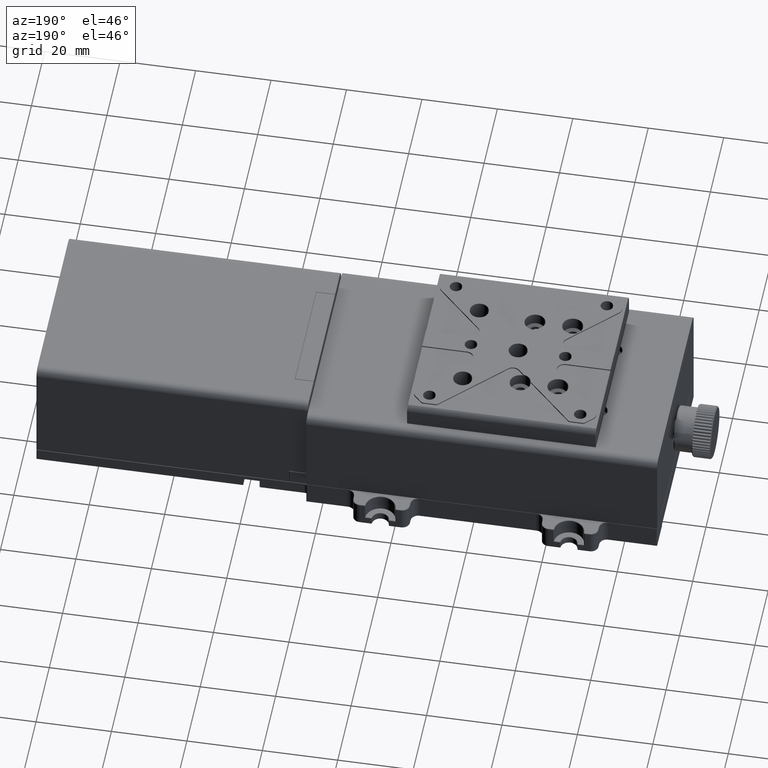
[diagram: clean part render]
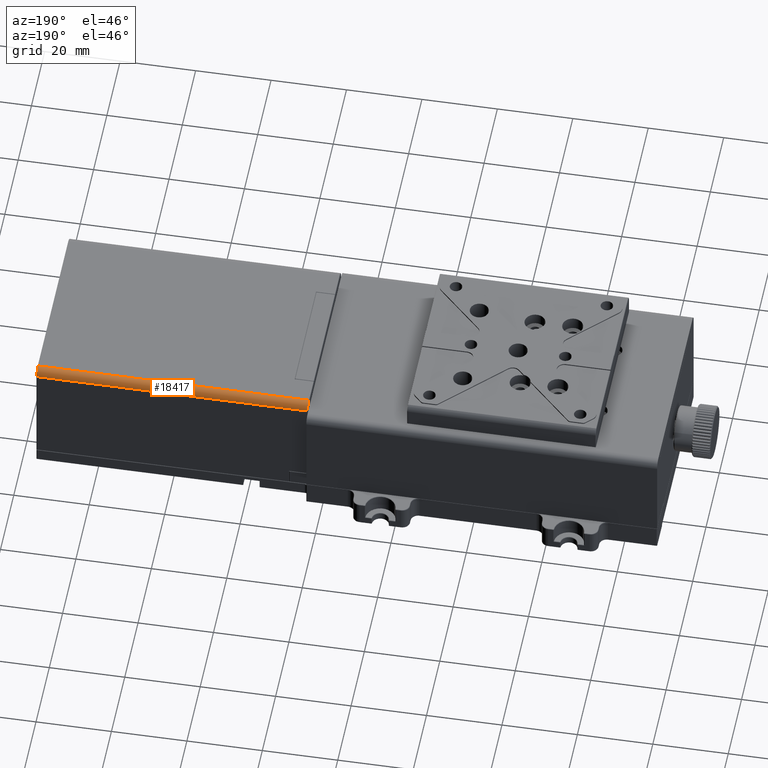
[diagram: same view with one face highlighted and labeled with its STEP entity id]
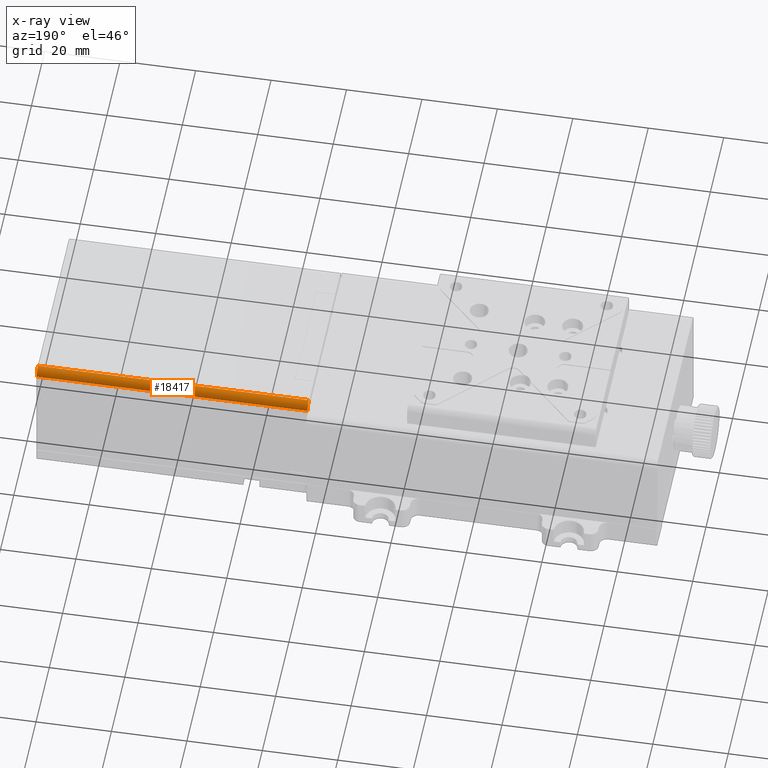
[diagram: x-ray of the same camera — body ghosted, the highlighted face saturated]
A machine part, auxiliary view. The second image highlights one B-rep face of the part: STEP entity #18417.
The next image is the same camera in x-ray: the body ghosted, the highlighted face saturated — about 0% of this face is hidden behind the body in this view.
In plain terms, the highlighted cylindrical surface (edge-blend (fillet) strip) has radius 2 mm, axis along (1, -0, 0).
Its self-contained STEP definition (entity closure, byte-faithful):
#2900 = VECTOR ( 'NONE', #31300, 1000.000000000000000 ) ;
#5565 = EDGE_CURVE ( 'NONE', #35950, #58785, #55265, .T. ) ;
#5746 = CIRCLE ( 'NONE', #52734, 1.999999999999998224 ) ;
#11588 = AXIS2_PLACEMENT_3D ( 'NONE', #31465, #81916, #20384 ) ;
#11927 = CARTESIAN_POINT ( 'NONE',  ( 3.989887640449434780, 47.25842696629209172, 26.50000000000000000 ) ) ;
#17576 = EDGE_CURVE ( 'NONE', #66667, #53842, #64018, .T. ) ;
#18226 = DIRECTION ( 'NONE',  ( -1.000000000000000000, 1.110223024625155924E-16, 0.000000000000000000 ) ) ;
#18417 = ADVANCED_FACE ( 'NONE', ( #27109 ), #44104, .T. ) ;
#20129 = ORIENTED_EDGE ( 'NONE', *, *, #17576, .F. ) ;
#20384 = DIRECTION ( 'NONE',  ( 0.000000000000000000, 0.000000000000000000, 1.000000000000000000 ) ) ;
#26613 = CARTESIAN_POINT ( 'NONE',  ( 3.889887640449429806, 47.25842696629209172, 28.50000000000000000 ) ) ;
#27109 = FACE_OUTER_BOUND ( 'NONE', #69478, .T. ) ;
#31300 = DIRECTION ( 'NONE',  ( 1.000000000000000000, -1.110223024625155924E-16, 0.000000000000000000 ) ) ;
#31465 = CARTESIAN_POINT ( 'NONE',  ( 3.889887640449435136, 47.25842696629209172, 26.50000000000000000 ) ) ;
#35950 = VERTEX_POINT ( 'NONE', #61485 ) ;
#39097 = ORIENTED_EDGE ( 'NONE', *, *, #5565, .F. ) ;
#43490 = CARTESIAN_POINT ( 'NONE',  ( 3.889887640449435136, 49.25842696629209883, 26.50000000000000000 ) ) ;
#44104 = CYLINDRICAL_SURFACE ( 'NONE', #11588, 1.999999999999998224 ) ;
#46294 = CARTESIAN_POINT ( 'NONE',  ( 75.78988764044939330, 47.25842696629209172, 28.50000000000000000 ) ) ;
#47244 = CIRCLE ( 'NONE', #49930, 1.999999999999998224 ) ;
#49930 = AXIS2_PLACEMENT_3D ( 'NONE', #11927, #56884, #64837 ) ;
#52734 = AXIS2_PLACEMENT_3D ( 'NONE', #80789, #81648, #61859 ) ;
#53842 = VERTEX_POINT ( 'NONE', #72235 ) ;
#55265 = LINE ( 'NONE', #43490, #2900 ) ;
#55425 = EDGE_CURVE ( 'NONE', #35950, #53842, #47244, .T. ) ;
#56884 = DIRECTION ( 'NONE',  ( 1.000000000000000000, -1.110223024625155924E-16, 0.000000000000000000 ) ) ;
#58785 = VERTEX_POINT ( 'NONE', #73814 ) ;
#60034 = ORIENTED_EDGE ( 'NONE', *, *, #55425, .T. ) ;
#61429 = ORIENTED_EDGE ( 'NONE', *, *, #70772, .T. ) ;
#61485 = CARTESIAN_POINT ( 'NONE',  ( 3.989887640449434780, 49.25842696629209883, 26.50000000000000000 ) ) ;
#61859 = DIRECTION ( 'NONE',  ( 0.000000000000000000, 0.000000000000000000, -1.000000000000000000 ) ) ;
#64018 = LINE ( 'NONE', #26613, #79958 ) ;
#64837 = DIRECTION ( 'NONE',  ( 0.000000000000000000, 0.000000000000000000, 1.000000000000000000 ) ) ;
#66667 = VERTEX_POINT ( 'NONE', #46294 ) ;
#69478 = EDGE_LOOP ( 'NONE', ( #39097, #60034, #20129, #61429 ) ) ;
#70772 = EDGE_CURVE ( 'NONE', #66667, #58785, #5746, .T. ) ;
#72235 = CARTESIAN_POINT ( 'NONE',  ( 3.989887640449434780, 47.25842696629209172, 28.50000000000000000 ) ) ;
#73814 = CARTESIAN_POINT ( 'NONE',  ( 75.78988764044939330, 49.25842696629209883, 26.50000000000000000 ) ) ;
#79958 = VECTOR ( 'NONE', #18226, 1000.000000000000000 ) ;
#80789 = CARTESIAN_POINT ( 'NONE',  ( 75.78988764044939330, 47.25842696629209172, 26.50000000000000000 ) ) ;
#81648 = DIRECTION ( 'NONE',  ( -1.000000000000000000, 1.110223024625155924E-16, 0.000000000000000000 ) ) ;
#81916 = DIRECTION ( 'NONE',  ( 1.000000000000000000, -1.110223024625155924E-16, 0.000000000000000000 ) ) ;